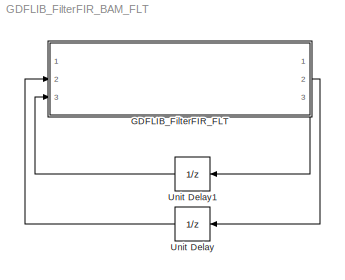
MODEL GDFLIB_FilterFIR_BAM_FLT
KIND model
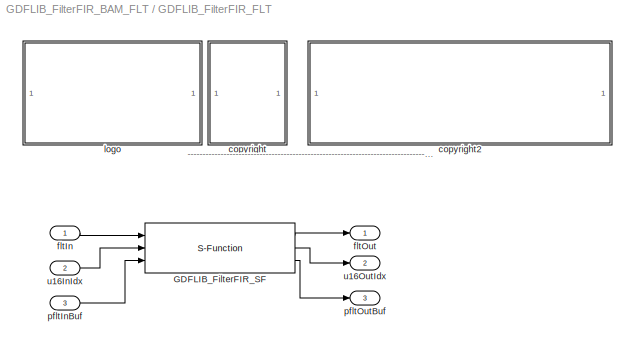
BLOCK [SubSystem] GDFLIB_FilterFIR_FLT
  FunctionWithSeparateData = off
  MaskCallbackString = |
  MaskDescription = Bit accurate model of FIR filter. All parameters as well as input and output are in single precision floating data format.
  MaskDisplay = color('black');\nport_label('input',1,'fltIn');\nport_label('input',2,'u16InIdx');\nport_label('input',3,'pfltInBuf');\nport_label('output',1,'fltOut');\nport_label('output',2,'u16OutIdx');\nport_label('output',3,'pfltOutBuf');\ncolor('black');\ndisp('GDFLIB_FilterFIR_FLT');\ncolor('blue');\ntext(tX,tY, 'BAM', 'horizontalAlignment', 'center');
  MaskEnableString = on,on
  MaskHideContents = off
  MaskIconFrame = on
  MaskIconOpaque = on
  MaskIconRotate = none
  MaskIconUnits = pixels
  MaskInitialization = pos = get_param(gcb, 'Position');width = pos(3) - pos(1); height = pos(4) - pos(2);tX=width/2;tY=height*0.9;
  MaskPortRotate = default
  MaskPromptString = u32Order|pfltCoefBuf
  MaskStyleString = edit,edit
  MaskTabNameString = ,
  MaskToolTipString = on,on
  MaskTunableValueString = on,on
  MaskType = GDFLIB_FilterFIR_FLT
  MaskValueString = u32Order|pfltCoefBuf
  MaskVarAliasString = ,
  MaskVariables = u32Order=@1;pfltCoefBuf=@2;
  MaskVisibilityString = on,on
  MinAlgLoopOccurrences = off
  Opaque = off
  Ports = [3, 3]
  PropExecContextOutsideSubsystem = off
  RTWSystemCode = Auto
  RequestExecContextInheritance = off
BLOCK [S-Function] GDFLIB_FilterFIR_FLT/GDFLIB_FilterFIR_SF
  EnableBusSupport = off
  FunctionName = GDFLIB_FilterFIR_SF_FLT
  Parameters = u32Order,pfltCoefBuf
  Ports = [3, 3]
BLOCK [SubSystem] GDFLIB_FilterFIR_FLT/<copyright redacted>
  FunctionWithSeparateData = off
  MaskDisplay = text(10,90,'FILE:');text(10,75,'DESRIPTION:')text(10,60,'<copyright redacted>
  MaskHideContents = off
  MaskIconFrame = off
  MaskIconOpaque = on
  MaskIconRotate = none
  MaskIconUnits = pixels
  MaskPortRotate = default
  MinAlgLoopOccurrences = off
  Opaque = off
  Ports = []
  PropExecContextOutsideSubsystem = off
  RTWSystemCode = Auto
  RequestExecContextInheritance = off
BLOCK [SubSystem] GDFLIB_FilterFIR_FLT/copyright2
  FunctionWithSeparateData = off
  MaskDisplay = text(10,90,'GDFLIB_FilterFIR_BAM_FLT.mdl');text(10,75,'FIR filter.');text(10,60,'Freescale')text(10,45,'0.1');text(10,30,'20-Sep-2011');
  MaskHideContents = off
  MaskIconFrame = off
  MaskIconOpaque = on
  MaskIconRotate = none
  MaskIconUnits = pixels
  MaskPortRotate = default
  MinAlgLoopOccurrences = off
  Opaque = off
  Ports = []
  PropExecContextOutsideSubsystem = off
  RTWSystemCode = Auto
  RequestExecContextInheritance = off
BLOCK [Inport] GDFLIB_FilterFIR_FLT/fltIn
  IconDisplay = Port number
  OutDataType = fixdt(1, 16)
  OutScaling = 2^0
BLOCK [Outport] GDFLIB_FilterFIR_FLT/fltOut
  IconDisplay = Port number
  OutDataType = fixdt(1, 16)
  OutScaling = 2^0
BLOCK [SubSystem] GDFLIB_FilterFIR_FLT/logo
  FunctionWithSeparateData = off
  MaskDisplay = image(imread('logo.jpg'))
  MaskHideContents = off
  MaskIconFrame = off
  MaskIconOpaque = on
  MaskIconRotate = none
  MaskIconUnits = autoscale
  MaskPortRotate = default
  MinAlgLoopOccurrences = off
  Opaque = off
  Ports = []
  PropExecContextOutsideSubsystem = off
  RTWSystemCode = Auto
  RequestExecContextInheritance = off
BLOCK [Inport] GDFLIB_FilterFIR_FLT/pfltInBuf
  IconDisplay = Port number
  OutDataType = fixdt(1, 16)
  OutScaling = 2^0
  Port = 3
BLOCK [Outport] GDFLIB_FilterFIR_FLT/pfltOutBuf
  IconDisplay = Port number
  OutDataType = fixdt(1, 16)
  OutScaling = 2^0
  Port = 3
BLOCK [Inport] GDFLIB_FilterFIR_FLT/u16InIdx
  IconDisplay = Port number
  OutDataType = fixdt(1, 16)
  OutScaling = 2^0
  Port = 2
BLOCK [Outport] GDFLIB_FilterFIR_FLT/u16OutIdx
  IconDisplay = Port number
  OutDataType = fixdt(1, 16)
  OutScaling = 2^0
  Port = 2
BLOCK [UnitDelay] Unit Delay
  SampleTime = -1
BLOCK [UnitDelay] Unit Delay1
  SampleTime = -1
ANNOTATION GDFLIB_FilterFIR_FLT: ---------------------------------------------------------------------------------------------------------------------------------------------------------------------------------------------------
LINE GDFLIB_FilterFIR_FLT/GDFLIB_FilterFIR_SF:1 -> GDFLIB_FilterFIR_FLT/fltOut:1
LINE GDFLIB_FilterFIR_FLT/GDFLIB_FilterFIR_SF:2 -> GDFLIB_FilterFIR_FLT/u16OutIdx:1
LINE GDFLIB_FilterFIR_FLT/GDFLIB_FilterFIR_SF:3 -> GDFLIB_FilterFIR_FLT/pfltOutBuf:1
LINE GDFLIB_FilterFIR_FLT/fltIn:1 -> GDFLIB_FilterFIR_FLT/GDFLIB_FilterFIR_SF:1
LINE GDFLIB_FilterFIR_FLT/pfltInBuf:1 -> GDFLIB_FilterFIR_FLT/GDFLIB_FilterFIR_SF:3
LINE GDFLIB_FilterFIR_FLT/u16InIdx:1 -> GDFLIB_FilterFIR_FLT/GDFLIB_FilterFIR_SF:2
LINE GDFLIB_FilterFIR_FLT:2 -> Unit Delay:1
LINE GDFLIB_FilterFIR_FLT:3 -> Unit Delay1:1
LINE Unit Delay1:1 -> GDFLIB_FilterFIR_FLT:3
LINE Unit Delay:1 -> GDFLIB_FilterFIR_FLT:2
